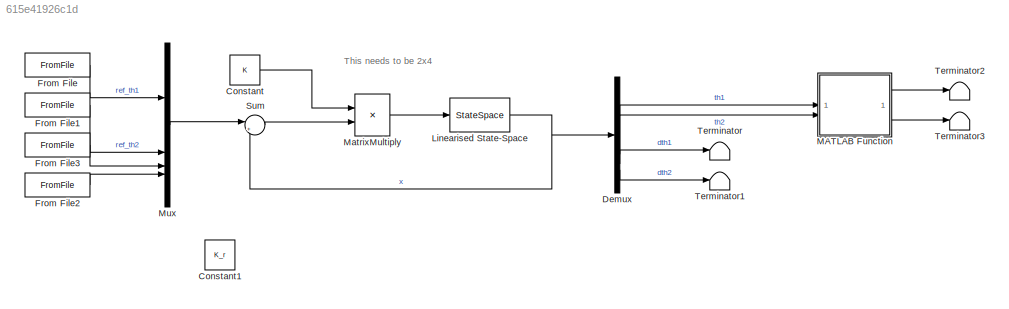
MODEL slx_615e41926c1d
KIND model
CONFIG AbsTol = auto
CONFIG EnableMultiTasking = off
CONFIG FixedStep = 0.02
CONFIG MaxStep = auto
CONFIG MinStep = auto
CONFIG RelTol = 1e-3
CONFIG SampleTimeConstraint = Unconstrained
CONFIG SolverName = FixedStepAuto
CONFIG StartTime = 0.0
CONFIG StopTime = 20
BLOCK [Constant] Constant
  Value = K
BLOCK [Constant] Constant1
  Commented = on
  NameLocation = right
  Value = K_r
BLOCK [Demux] Demux
BLOCK [FromFile] From File
  FileName = ref_th1.mat
  SampleTime = 0
BLOCK [FromFile] From File1
  FileName = ref_th2.mat
  SampleTime = 0
BLOCK [FromFile] From File2
  FileName = ref_dth2.mat
  SampleTime = 0
BLOCK [FromFile] From File3
  FileName = ref_dth1.mat
  SampleTime = 0
BLOCK [StateSpace] Linearised State-Space
  A = A
  B = B
  C = [1 0 0 0; 0 1 0 0; 0 0 1 0; 0 0 0 1]
  D = [0 0; 0 0; 0 0;0 0]
  InitialCondition = 0
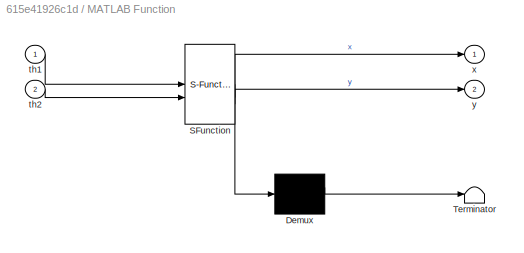
BLOCK [SubSystem] MATLAB Function
  ErrorFcn = Stateflow.Translate.translate
  PermitHierarchicalResolution = ExplicitOnly
  SFBlockType = MATLAB Function
  TreatAsAtomicUnit = on
BLOCK [Demux] MATLAB Function/ Demux 
  Outputs = 1
BLOCK [S-Function] MATLAB Function/ SFunction 
  EnableBusSupport = on
  FunctionName = sf_sfun
  Parameters = L1,L2
  PortCounts = [2 3]
  SFcnIsStateOwnerBlock = off
  SFunctionDeploymentMode = off
  Tag = Stateflow S-Function 2
BLOCK [Terminator] MATLAB Function/ Terminator 
BLOCK [Inport] MATLAB Function/th1
BLOCK [Inport] MATLAB Function/th2
  Port = 2
BLOCK [Outport] MATLAB Function/x
BLOCK [Outport] MATLAB Function/y
  Port = 2
BLOCK [Product] MatrixMultiply
  Multiplication = Matrix(*)
BLOCK [Mux] Mux
  DisplayOption = bar
BLOCK [Sum] Sum
  Inputs = |+-
BLOCK [Terminator] Terminator
BLOCK [Terminator] Terminator1
BLOCK [Terminator] Terminator2
BLOCK [Terminator] Terminator3
ANNOTATION (root): This needs to be 2x4
LINE Constant:1 -> MatrixMultiply:1
LINE Demux:1 -> MATLAB Function:1
LINE Demux:2 -> MATLAB Function:2
LINE Demux:3 -> Terminator:1
LINE Demux:4 -> Terminator1:1
LINE From File1:1 -> Mux:2
LINE From File2:1 -> Mux:4
LINE From File3:1 -> Mux:3
LINE From File:1 -> Mux:1
NET Linearised State-Space:1 -> Demux:1, Sum:2
LINE MATLAB Function:1 -> Terminator2:1
LINE MATLAB Function:2 -> Terminator3:1
LINE MatrixMultiply:1 -> Linearised State-Space:1
LINE Mux:1 -> Sum:1
LINE Sum:1 -> MatrixMultiply:2
note: NET lines group one-source signal fan-out (src -> all destinations, sorted); 1:1 wires keep LINE
CHART MATLAB Function states=1 transitions=1
  STATE_LABEL 'eML_blk_kernel()'
  STATE_LABEL 'SCRIPT:\nfunction [x,y] = th_to_xy(th1, th2, L1, L2)\n    x = L1*cos(deg2rad(th1)) + L2*cos(deg2rad(th2));\n    y = L1*sin(deg2rad(th1)) + L2*sin(deg2rad(th2));\n'
CHART  states=0 transitions=0
